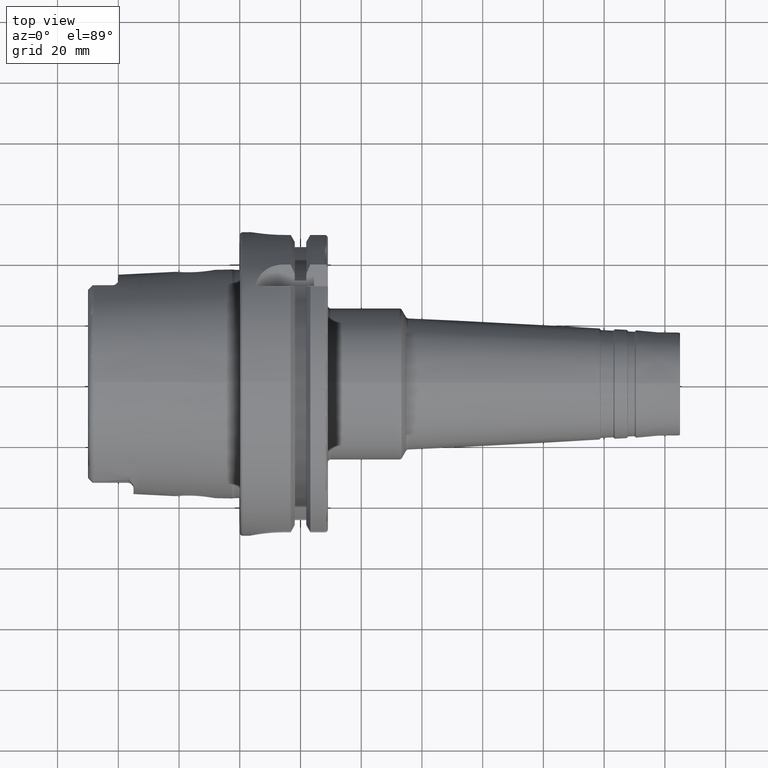
[diagram: clean part render]
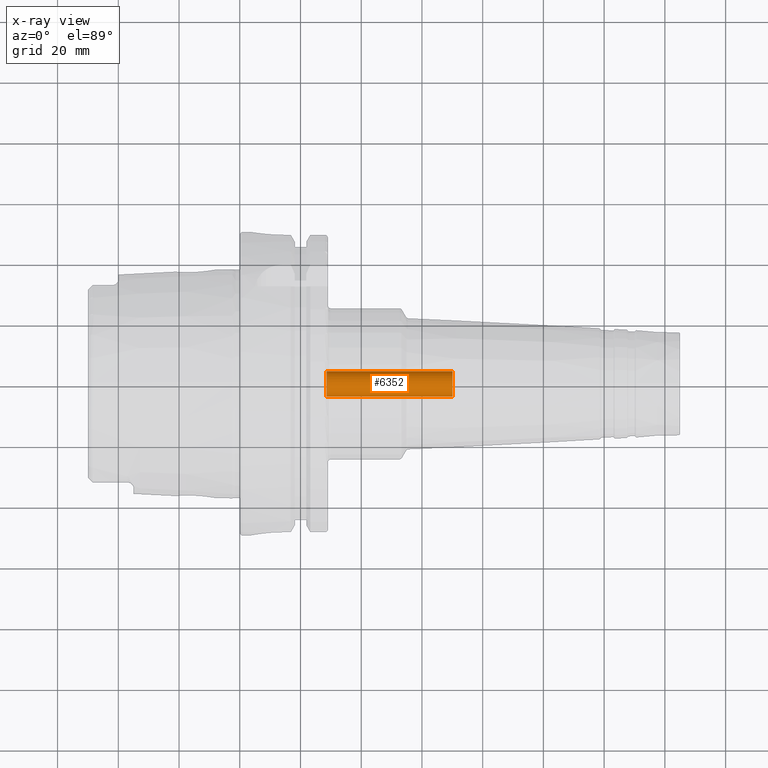
[diagram: x-ray — body ghosted, one internal face saturated and labeled with its STEP entity id]
A machine part, top view, then the same camera in x-ray: the body is ghosted and one INTERNAL B-rep face — a face not visible from any outside direction — is saturated and labeled: STEP entity #6352.
In plain terms, the highlighted cylindrical surface (edge-blend (fillet) strip) has radius 4.2 mm, axis along (-1, 0, 0).
Its self-contained STEP definition (entity closure, byte-faithful):
#2630=CARTESIAN_POINT('',(7.006587659821E1,0.E0,0.E0));
#2631=DIRECTION('',(-1.E0,0.E0,0.E0));
#2632=DIRECTION('',(0.E0,-1.E0,0.E0));
#2633=AXIS2_PLACEMENT_3D('',#2630,#2631,#2632);
#2648=DIRECTION('',(-1.E0,0.E0,0.E0));
#2649=VECTOR('',#2648,4.156587659821E1);
#2650=CARTESIAN_POINT('',(7.006587659821E1,-4.2E0,0.E0));
#2651=LINE('',#2650,#2649);
#2652=CARTESIAN_POINT('',(2.85E1,0.E0,0.E0));
#2653=DIRECTION('',(-1.E0,0.E0,0.E0));
#2654=DIRECTION('',(0.E0,-1.E0,0.E0));
#2655=AXIS2_PLACEMENT_3D('',#2652,#2653,#2654);
#2738=DIRECTION('',(-1.E0,0.E0,0.E0));
#2739=VECTOR('',#2738,4.156587659821E1);
#2740=CARTESIAN_POINT('',(7.006587659821E1,4.2E0,0.E0));
#2741=LINE('',#2740,#2739);
#2742=CARTESIAN_POINT('',(7.006587659821E1,0.E0,0.E0));
#2743=DIRECTION('',(-1.E0,0.E0,0.E0));
#2744=DIRECTION('',(0.E0,0.E0,1.E0));
#2745=AXIS2_PLACEMENT_3D('',#2742,#2743,#2744);
#3285=CARTESIAN_POINT('',(2.85E1,-4.2E0,0.E0));
#3286=CARTESIAN_POINT('',(2.85E1,4.2E0,0.E0));
#3287=VERTEX_POINT('',#3285);
#3288=VERTEX_POINT('',#3286);
#3289=CARTESIAN_POINT('',(7.006587659821E1,0.E0,4.2E0));
#3290=CARTESIAN_POINT('',(7.006587659821E1,4.2E0,0.E0));
#3291=VERTEX_POINT('',#3289);
#3292=VERTEX_POINT('',#3290);
#3295=CARTESIAN_POINT('',(7.006587659821E1,-4.2E0,0.E0));
#3296=VERTEX_POINT('',#3295);
#6336=CARTESIAN_POINT('',(1.45E2,0.E0,0.E0));
#6337=DIRECTION('',(-1.E0,0.E0,0.E0));
#6338=DIRECTION('',(0.E0,-1.E0,0.E0));
#6339=AXIS2_PLACEMENT_3D('',#6336,#6337,#6338);
#6340=CYLINDRICAL_SURFACE('',#6339,4.2E0);
#6342=ORIENTED_EDGE('',*,*,#6341,.F.);
#6344=ORIENTED_EDGE('',*,*,#6343,.F.);
#6345=ORIENTED_EDGE('',*,*,#6324,.T.);
#6347=ORIENTED_EDGE('',*,*,#6346,.T.);
#6349=ORIENTED_EDGE('',*,*,#6348,.T.);
#6350=EDGE_LOOP('',(#6342,#6344,#6345,#6347,#6349));
#6351=FACE_OUTER_BOUND('',#6350,.F.);
#6352=ADVANCED_FACE('',(#6351),#6340,.F.);
#2634=CIRCLE('',#2633,4.2E0);
#2656=CIRCLE('',#2655,4.2E0);
#2746=CIRCLE('',#2745,4.2E0);
#6324=EDGE_CURVE('',#3296,#3291,#2634,.T.);
#6341=EDGE_CURVE('',#3287,#3288,#2656,.T.);
#6343=EDGE_CURVE('',#3296,#3287,#2651,.T.);
#6346=EDGE_CURVE('',#3291,#3292,#2746,.T.);
#6348=EDGE_CURVE('',#3292,#3288,#2741,.T.);